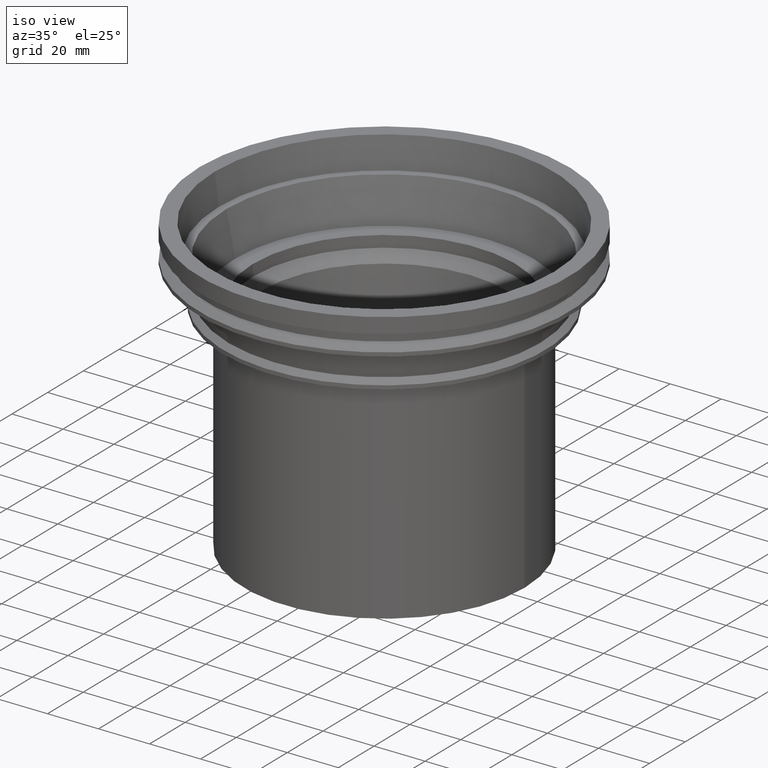
[diagram: clean part render]
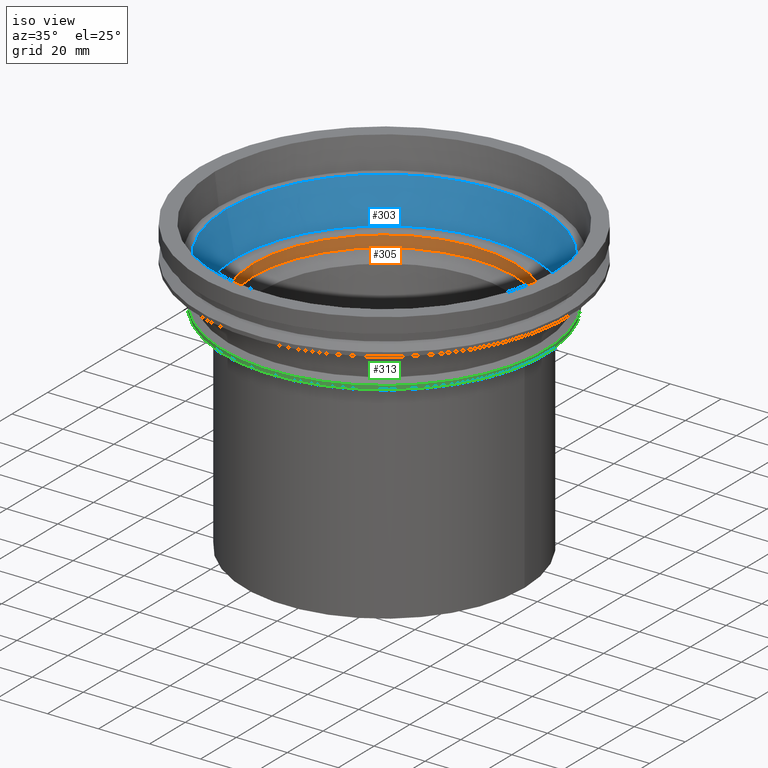
[diagram: same view with three faces highlighted in distinct colors, each labeled with its STEP entity id]
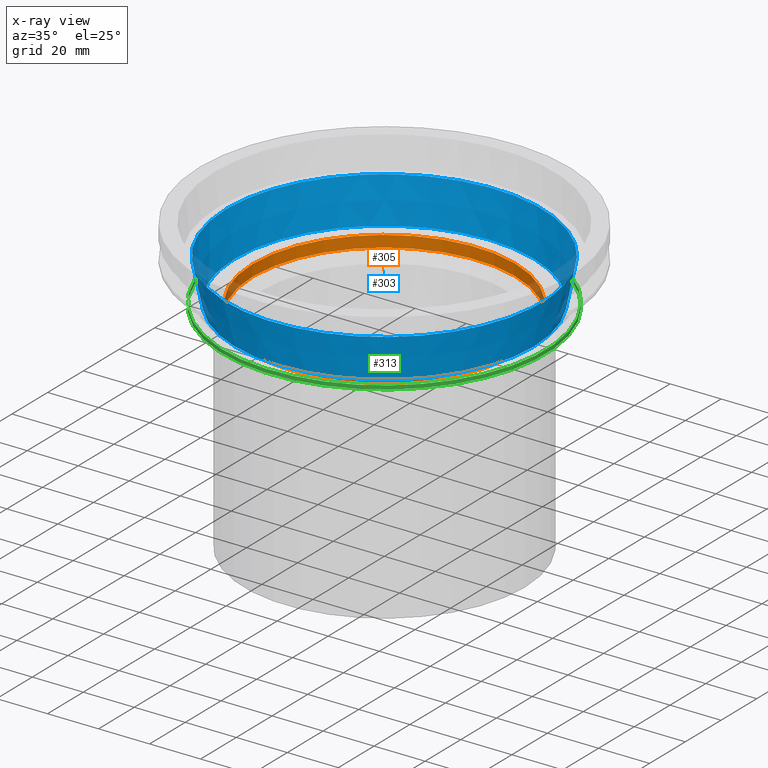
[diagram: x-ray of the same camera — body ghosted, the three highlighted faces saturated]
A machine part, iso view with three faces highlighted in distinct colors.
The next image is the same camera in x-ray (body ghosted, the three faces saturated) — at least one of them is partly hidden behind the body in this view.
Their STEP definitions:

[orange] entity #305 — the highlighted cylindrical surface (bore or boss wall) has radius 51.5 mm, axis along (0, 0, -1).
#45=CYLINDRICAL_SURFACE('',#374,51.5);
#78=ORIENTED_EDGE('',*,*,#116,.T.);
#79=ORIENTED_EDGE('',*,*,#115,.F.);
#115=EDGE_CURVE('',#141,#141,#167,.T.);
#116=EDGE_CURVE('',#142,#142,#168,.T.);
#141=VERTEX_POINT('',#554);
#142=VERTEX_POINT('',#557);
#167=CIRCLE('',#373,51.5);
#168=CIRCLE('',#375,51.5);
#208=EDGE_LOOP('',(#78));
#209=EDGE_LOOP('',(#79));
#260=FACE_BOUND('',#208,.T.);
#261=FACE_BOUND('',#209,.T.);
#305=ADVANCED_FACE('',(#260,#261),#45,.F.);
#373=AXIS2_PLACEMENT_3D('',#553,#460,#461);
#374=AXIS2_PLACEMENT_3D('',#555,#462,#463);
#375=AXIS2_PLACEMENT_3D('',#556,#464,#465);
#460=DIRECTION('',(0.,0.,-1.));
#461=DIRECTION('',(-1.,0.,0.));
#462=DIRECTION('',(0.,0.,-1.));
#463=DIRECTION('',(-1.,0.,0.));
#464=DIRECTION('',(0.,0.,-1.));
#465=DIRECTION('',(-1.,0.,0.));
#553=CARTESIAN_POINT('',(0.,0.,-28.657));
#554=CARTESIAN_POINT('',(-51.5,0.,-28.657));
#555=CARTESIAN_POINT('',(0.,0.,-50.));
#556=CARTESIAN_POINT('',(0.,0.,-33.157));
#557=CARTESIAN_POINT('',(-51.5,0.,-33.157));

[blue] entity #303 — the highlighted conical surface has half-angle 11.527 deg.
#21=CONICAL_SURFACE('',#370,61.897,0.201179487707473);
#74=ORIENTED_EDGE('',*,*,#114,.T.);
#75=ORIENTED_EDGE('',*,*,#113,.F.);
#113=EDGE_CURVE('',#139,#139,#165,.T.);
#114=EDGE_CURVE('',#140,#140,#166,.T.);
#139=VERTEX_POINT('',#548);
#140=VERTEX_POINT('',#551);
#165=CIRCLE('',#369,61.897);
#166=CIRCLE('',#371,58.5);
#204=EDGE_LOOP('',(#74));
#205=EDGE_LOOP('',(#75));
#256=FACE_BOUND('',#204,.T.);
#257=FACE_BOUND('',#205,.T.);
#303=ADVANCED_FACE('',(#256,#257),#21,.F.);
#369=AXIS2_PLACEMENT_3D('',#547,#452,#453);
#370=AXIS2_PLACEMENT_3D('',#549,#454,#455);
#371=AXIS2_PLACEMENT_3D('',#550,#456,#457);
#452=DIRECTION('',(0.,0.,-1.));
#453=DIRECTION('',(-1.,0.,0.));
#454=DIRECTION('',(0.,0.,1.));
#455=DIRECTION('',(1.,0.,0.));
#456=DIRECTION('',(0.,0.,-1.));
#457=DIRECTION('',(-1.,0.,0.));
#547=CARTESIAN_POINT('',(0.,0.,-12.));
#548=CARTESIAN_POINT('',(-61.897,0.,-12.));
#549=CARTESIAN_POINT('',(0.,0.,-12.));
#550=CARTESIAN_POINT('',(0.,0.,-28.657));
#551=CARTESIAN_POINT('',(-58.5,0.,-28.657));

[green] entity #313 — the highlighted cylindrical surface (bore or boss wall) has radius 63.223 mm, axis along (0, 0, -1).
#47=CYLINDRICAL_SURFACE('',#390,63.223);
#94=ORIENTED_EDGE('',*,*,#124,.T.);
#95=ORIENTED_EDGE('',*,*,#123,.F.);
#123=EDGE_CURVE('',#149,#149,#175,.T.);
#124=EDGE_CURVE('',#150,#150,#176,.T.);
#149=VERTEX_POINT('',#578);
#150=VERTEX_POINT('',#581);
#175=CIRCLE('',#389,63.223);
#176=CIRCLE('',#391,63.223);
#224=EDGE_LOOP('',(#94));
#225=EDGE_LOOP('',(#95));
#276=FACE_BOUND('',#224,.T.);
#277=FACE_BOUND('',#225,.T.);
#313=ADVANCED_FACE('',(#276,#277),#47,.T.);
#389=AXIS2_PLACEMENT_3D('',#577,#492,#493);
#390=AXIS2_PLACEMENT_3D('',#579,#494,#495);
#391=AXIS2_PLACEMENT_3D('',#580,#496,#497);
#492=DIRECTION('',(0.,0.,-1.));
#493=DIRECTION('',(-1.,0.,0.));
#494=DIRECTION('',(0.,0.,-1.));
#495=DIRECTION('',(-1.,0.,0.));
#496=DIRECTION('',(0.,0.,-1.));
#497=DIRECTION('',(-1.,0.,0.));
#577=CARTESIAN_POINT('',(0.,0.,-30.));
#578=CARTESIAN_POINT('',(-63.223,0.,-30.));
#579=CARTESIAN_POINT('',(0.,0.,-50.));
#580=CARTESIAN_POINT('',(0.,0.,-28.5));
#581=CARTESIAN_POINT('',(-63.223,0.,-28.5));